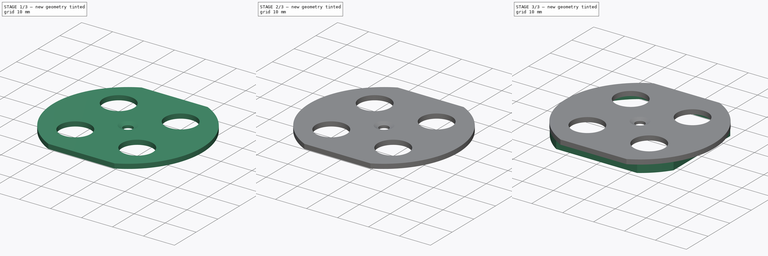
[diagram: build sequence overview — one tinted view per stage of 3, left to right]
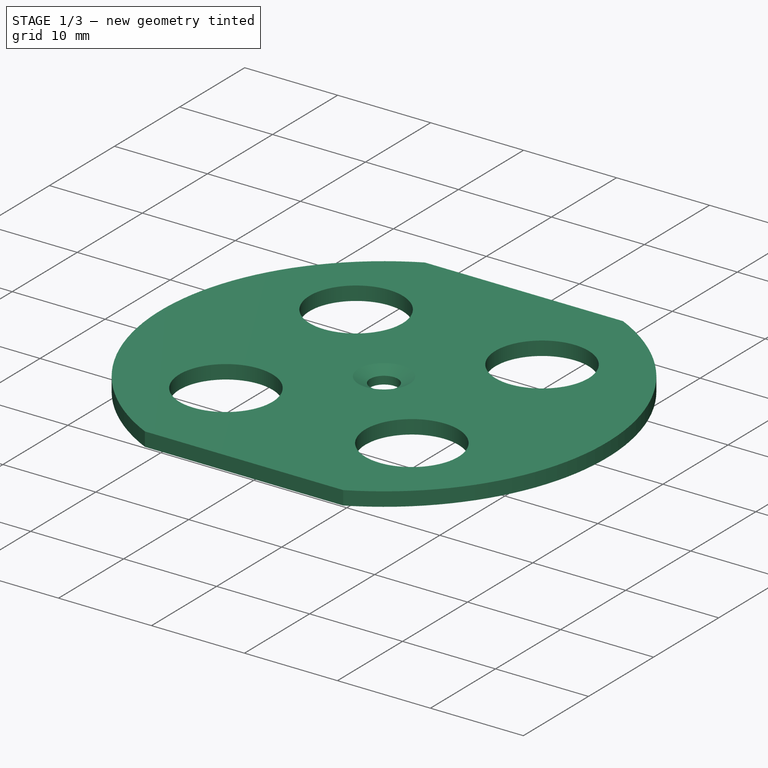
[diagram: stage 1 of 3 — iso view after this stage's code; geometry added in this stage tinted green]
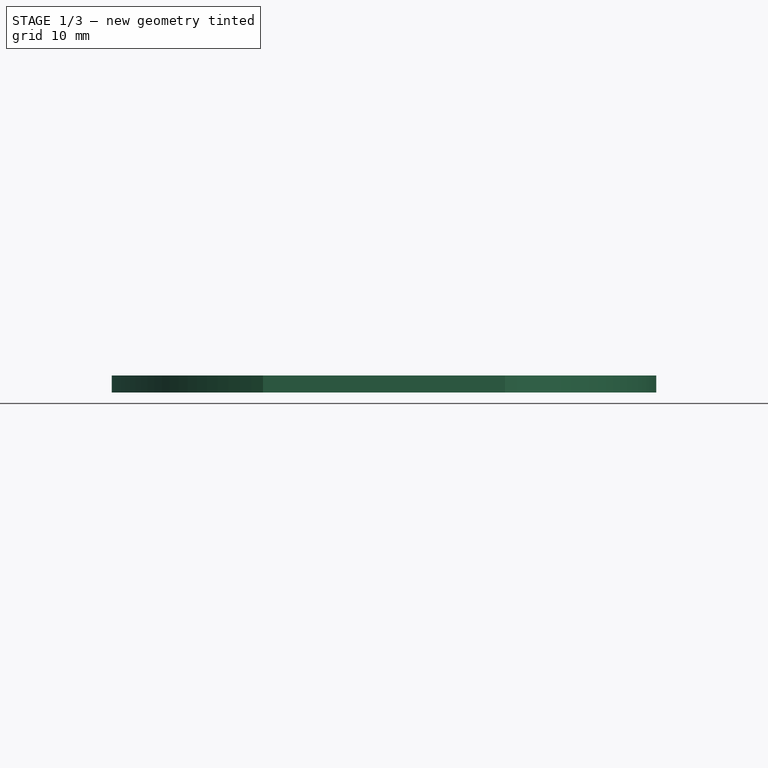
[diagram: stage 1 of 3 — front view after this stage's code; geometry added in this stage tinted green]
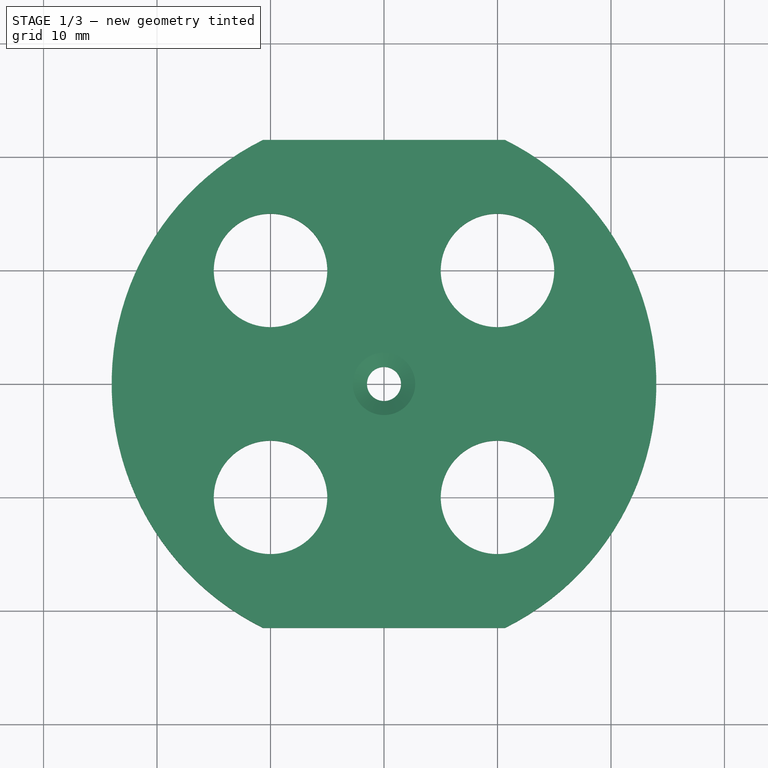
[diagram: stage 1 of 3 — top view after this stage's code; geometry added in this stage tinted green]
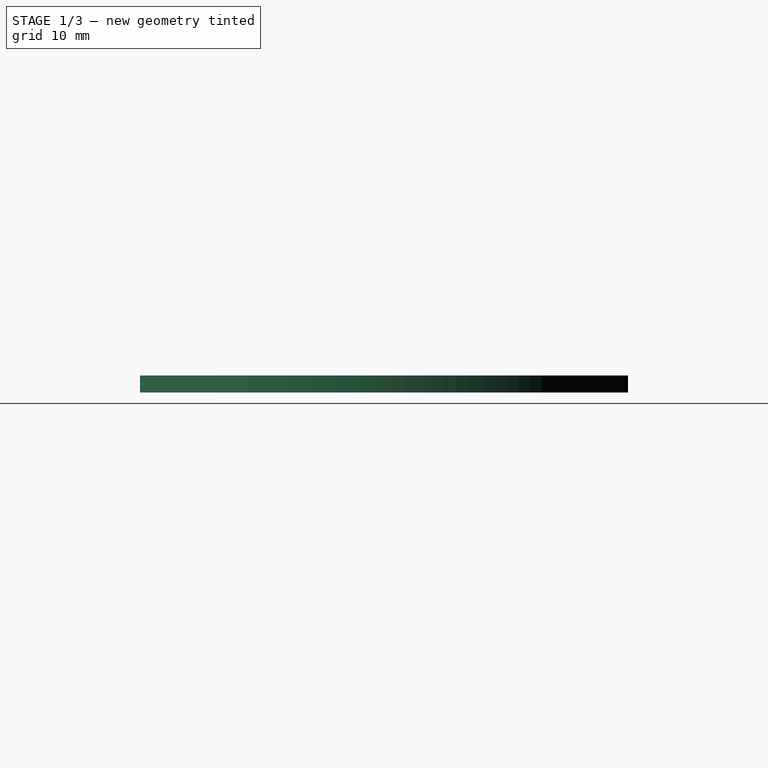
[diagram: stage 1 of 3 — right view after this stage's code; geometry added in this stage tinted green]
FCSTD DOCUMENT  (FreeCAD 0.21R33694 (Git))
Label: light_reflector_basin
License: All rights reserved
LicenseURL: http://en.wikipedia.org/wiki/All_rights_reserved
objects: Sketcher::SketchObject×4, PartDesign::Pad×2, PartDesign::Pocket×2, PartDesign::Chamfer×1, PartDesign::Body×1
note: 15 computed .brp shape members not serialized (recipe doc carries the construction recipe); baked Part::Feature solids carry a one-line shape summary decoded from their .brp

FEATURE [Sketcher::SketchObject] Sketch
  FullyConstrained = true
  MapMode = 5
  Support = -> [XY_Plane]
  sketch-geometry (9):
    g0: ArcOfCircle CenterX=0 CenterY=0 CenterZ=0 NormalX=0 NormalY=0 NormalZ=1 AngleXU=0 Radius=24 StartAngle=5.17288 EndAngle=7.39349
    g1: Circle CenterX=10 CenterY=-10 CenterZ=0 NormalX=0 NormalY=0 NormalZ=1 AngleXU=0 Radius=5
    g2: Circle CenterX=-10 CenterY=-10 CenterZ=0 NormalX=0 NormalY=0 NormalZ=1 AngleXU=0 Radius=5
    g3: Circle CenterX=-10 CenterY=10 CenterZ=0 NormalX=0 NormalY=0 NormalZ=1 AngleXU=0 Radius=5
    g4: Circle CenterX=10 CenterY=10 CenterZ=0 NormalX=0 NormalY=0 NormalZ=1 AngleXU=0 Radius=5
    g5: Circle CenterX=0 CenterY=0 CenterZ=0 NormalX=0 NormalY=0 NormalZ=1 AngleXU=0 Radius=1.5
    g6: LineSegment StartX=-10.6654 StartY=21.5 StartZ=0 EndX=10.6654 EndY=21.5 EndZ=0
    g7: LineSegment StartX=-10.6654 StartY=-21.5 StartZ=0 EndX=10.6654 EndY=-21.5 EndZ=0
    g8: ArcOfCircle CenterX=0 CenterY=0 CenterZ=0 NormalX=0 NormalY=0 NormalZ=1 AngleXU=0 Radius=24 StartAngle=2.03129 EndAngle=4.2519
  constraints (26):
    c: Coincident(g0,g-1)
    c: Radius(g0) = 24
    c: DistanceY(g0,g4) = 10
    c: DistanceX(g0,g4) = 10
    c: Radius(g3) = 5
    c: DistanceY(g0,g3) = 10
    c: DistanceX(g3,g0) = 10
    c: DistanceX(g2,g0) = 10
    c: DistanceX(g0,g1) = 10
    c: DistanceY(g1,g0) = 10
    c: DistanceY(g2,g0) = 10
    c: Coincident(g5,g0)
    c: Radius(g5) = 1.5
    c: Horizontal(g6)
    c: Horizontal(g7)
    c: DistanceY(g7,g6) = 43
    c: DistanceY(g0,g6) = 21.5
    c: Equal(g4,g3)
    c: Coincident(g8,g7)
    c: Coincident(g0,g7)
    c: Equal(g0,g8)
    c: Coincident(g0,g6)
    c: Coincident(g8,g6)
    c: Coincident(g0,g8)
    c: Equal(g3,g2)
    c: Equal(g3,g1)
FEATURE [PartDesign::Pad] Pad
  Direction = (0,0,1)
  Length = 1.5
  Length2 = 10
  Profile = -> Sketch
  ReferenceAxis = -> Sketch [N_Axis]
  Type = 0
FEATURE [PartDesign::Chamfer] Chamfer
  Angle = 45
  Base = -> Pad [Edge27]
  BaseFeature = -> Pad
  ChamferType = 1
  FlipDirection = false
  Size = 0.65
  Size2 = 1.25
  SupportTransform = false
  UseAllEdges = false
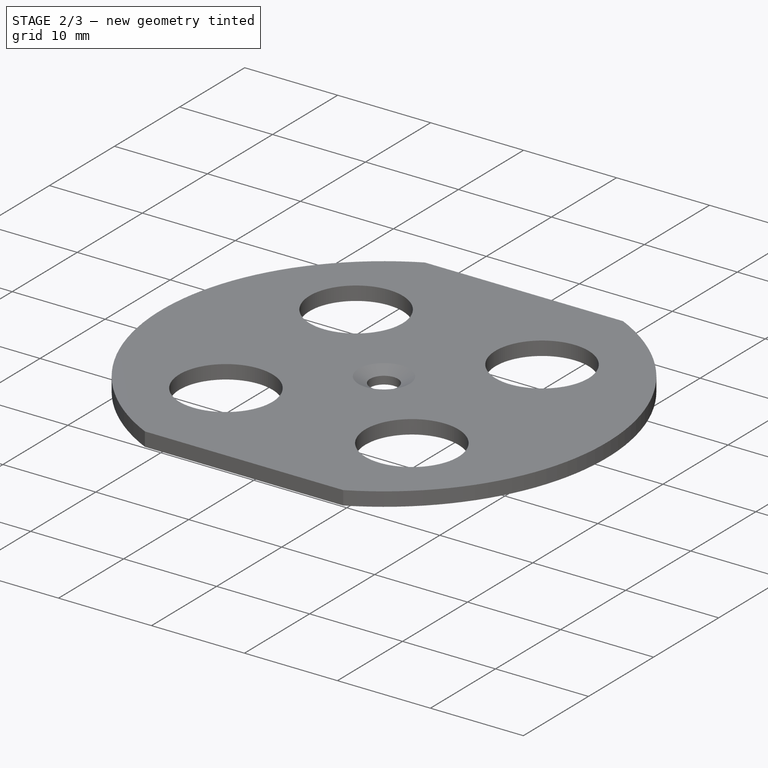
[diagram: stage 2 of 3 — iso view after this stage's code; geometry added in this stage tinted green]
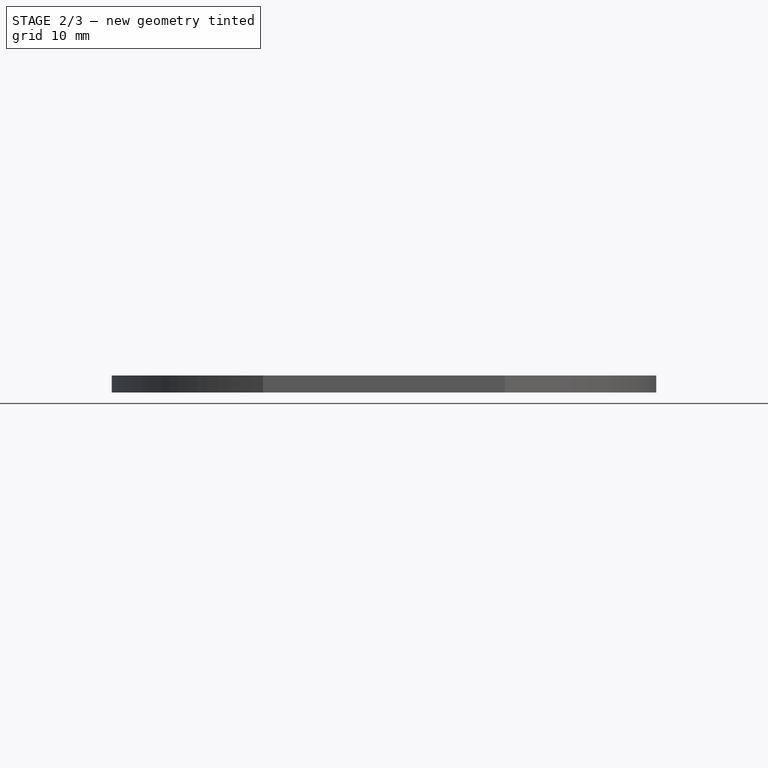
[diagram: stage 2 of 3 — front view after this stage's code; geometry added in this stage tinted green]
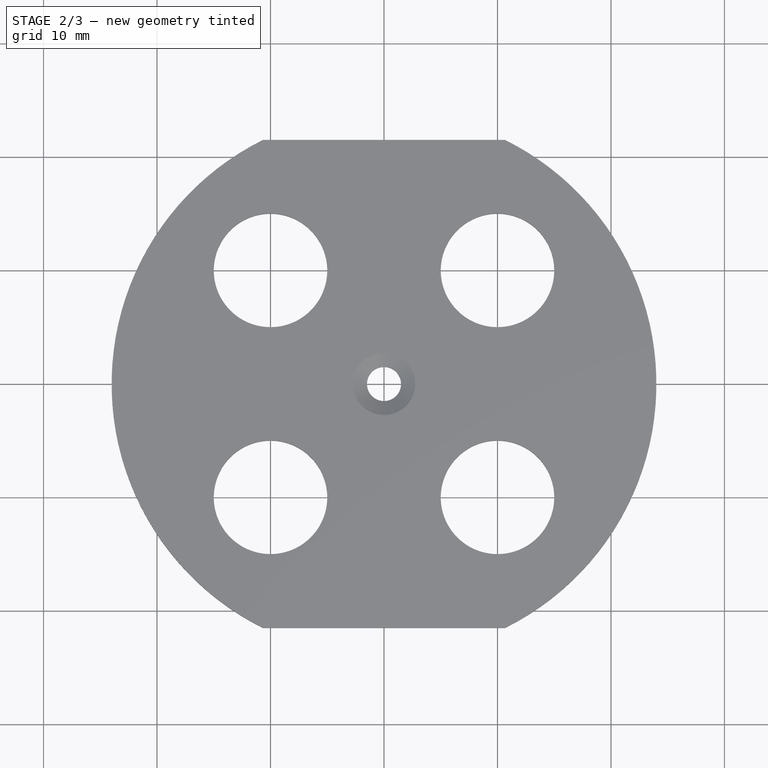
[diagram: stage 2 of 3 — top view after this stage's code; geometry added in this stage tinted green]
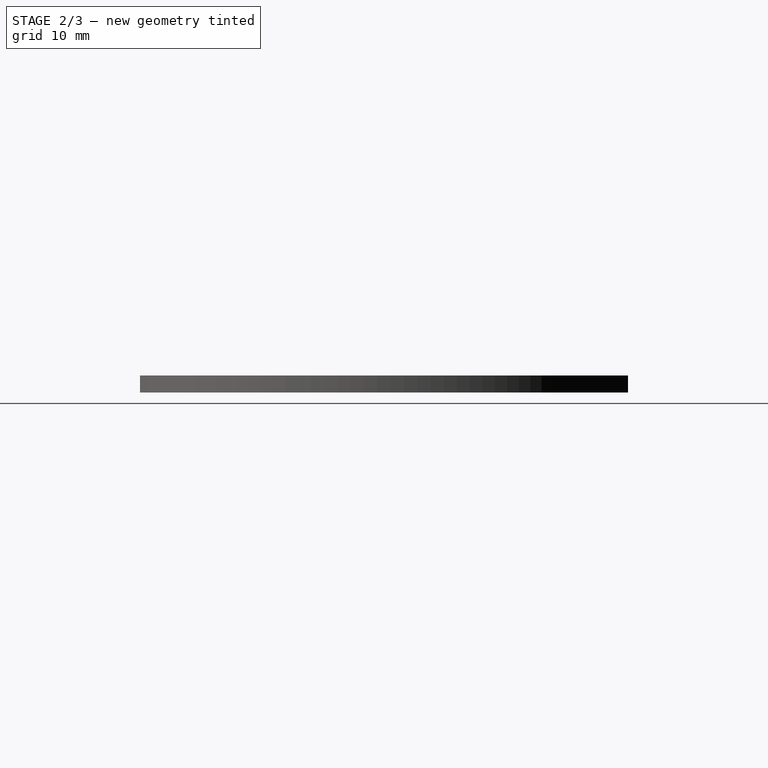
[diagram: stage 2 of 3 — right view after this stage's code; geometry added in this stage tinted green]
FEATURE [Sketcher::SketchObject] Sketch001
  FullyConstrained = true
  MapMode = 5
  Placement = pos=(0,0,0) rot=(1,0,0;3.14159rad)
  Support = -> [Chamfer]
  sketch-geometry (16):
    g0: ArcOfCircle CenterX=0 CenterY=14.5 CenterZ=0 NormalX=0 NormalY=0 NormalZ=1 AngleXU=0 Radius=4 StartAngle=0 EndAngle=3.14159
    g1: ArcOfCircle CenterX=0 CenterY=12 CenterZ=0 NormalX=0 NormalY=0 NormalZ=1 AngleXU=0 Radius=4 StartAngle=3.14159 EndAngle=6.28319
    g2: LineSegment StartX=-4 StartY=14.5 StartZ=0 EndX=-4 EndY=12 EndZ=0
    g3: LineSegment StartX=4 StartY=12 StartZ=0 EndX=4 EndY=14.5 EndZ=0
    g4: ArcOfCircle CenterX=0 CenterY=-14.5 CenterZ=0 NormalX=0 NormalY=0 NormalZ=1 AngleXU=0 Radius=4 StartAngle=3.14159 EndAngle=6.28319
    g5: ArcOfCircle CenterX=0 CenterY=-12 CenterZ=0 NormalX=0 NormalY=0 NormalZ=1 AngleXU=0 Radius=4 StartAngle=0 EndAngle=3.14159
    g6: LineSegment StartX=-4 StartY=-14.5 StartZ=0 EndX=-4 EndY=-12 EndZ=0
    g7: LineSegment StartX=4 StartY=-12 StartZ=0 EndX=4 EndY=-14.5 EndZ=0
    g8: ArcOfCircle CenterX=9 CenterY=0 CenterZ=0 NormalX=0 NormalY=0 NormalZ=1 AngleXU=0 Radius=4 StartAngle=1.5708 EndAngle=4.71239
    g9: ArcOfCircle CenterX=11 CenterY=0 CenterZ=0 NormalX=0 NormalY=0 NormalZ=1 AngleXU=0 Radius=4 StartAngle=4.71239 EndAngle=7.85398
    g10: LineSegment StartX=9 StartY=-4 StartZ=0 EndX=11 EndY=-4 EndZ=0
    g11: LineSegment StartX=11 StartY=4 StartZ=0 EndX=9 EndY=4 EndZ=0
    g12: ArcOfCircle CenterX=-9 CenterY=0 CenterZ=0 NormalX=0 NormalY=0 NormalZ=1 AngleXU=0 Radius=4 StartAngle=4.71239 EndAngle=7.85398
    g13: ArcOfCircle CenterX=-11 CenterY=0 CenterZ=0 NormalX=0 NormalY=0 NormalZ=1 AngleXU=0 Radius=4 StartAngle=1.5708 EndAngle=4.71239
    g14: LineSegment StartX=-9 StartY=-4 StartZ=0 EndX=-11 EndY=-4 EndZ=0
    g15: LineSegment StartX=-11 StartY=4 StartZ=0 EndX=-9 EndY=4 EndZ=0
  constraints (40):
    c: Tangent(g0,g2) = -1.5708
    c: Tangent(g2,g1) = -1.5708
    c: Tangent(g1,g3) = -1.5708
    c: Tangent(g3,g0) = -1.5708
    c: Equal(g0,g1)
    c: PointOnObject(g0,g-2)
    c: PointOnObject(g1,g-2)
    c: DistanceY(g-1,g1) = 12
    c: DistanceY(g1,g0) = 2.5
    c: DistanceX(g1,g1) = 8
    c: Tangent(g4,g6) = 1.5708
    c: Tangent(g6,g5) = 1.5708
    c: Tangent(g5,g7) = 1.5708
    c: Tangent(g7,g4) = 1.5708
    c: Equal(g4,g5)
    c: DistanceX(g5,g5) = 8
    c: DistanceY(g4,g5) = 2.5
    c: DistanceY(g5,g-1) = 12
    c: PointOnObject(g4,g-2)
    c: PointOnObject(g5,g-2)
    c: Tangent(g8,g10) = -1.5708
    c: Tangent(g10,g9) = -1.5708
    c: Tangent(g9,g11) = -1.5708
    c: Tangent(g11,g8) = -1.5708
    c: Equal(g8,g9)
    c: PointOnObject(g8,g-1)
    c: PointOnObject(g9,g-1)
    c: DistanceX(g-1,g8) = 9
    c: DistanceX(g8,g9) = 2
    c: DistanceY(g9,g9) = 8
    c: Tangent(g12,g14) = 1.5708
    c: Tangent(g14,g13) = 1.5708
    c: Tangent(g13,g15) = 1.5708
    c: Tangent(g15,g12) = 1.5708
    c: Equal(g12,g13)
    c: DistanceX(g12,g-1) = 9
    c: DistanceX(g13,g12) = 2
    c: DistanceY(g12,g12) = 8
    c: PointOnObject(g12,g-1)
    c: PointOnObject(g13,g-1)
FEATURE [PartDesign::Pocket] Pocket
  BaseFeature = -> Chamfer
  Direction = (0,0,1)
  Length = 1
  Length2 = 5
  Profile = -> Sketch001
  ReferenceAxis = -> Sketch001 [N_Axis]
  Type = 0
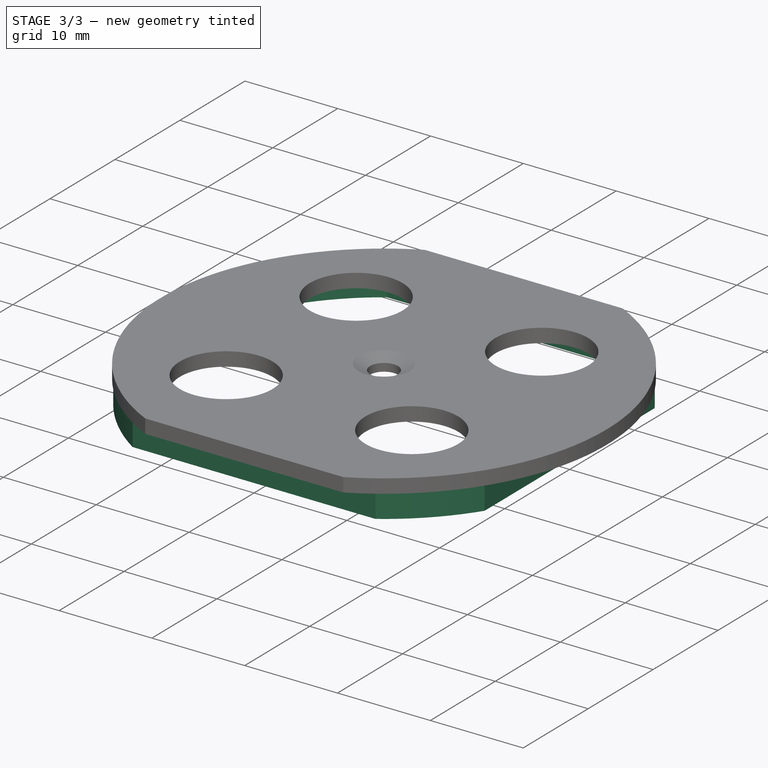
[diagram: stage 3 of 3 — iso view after this stage's code; geometry added in this stage tinted green]
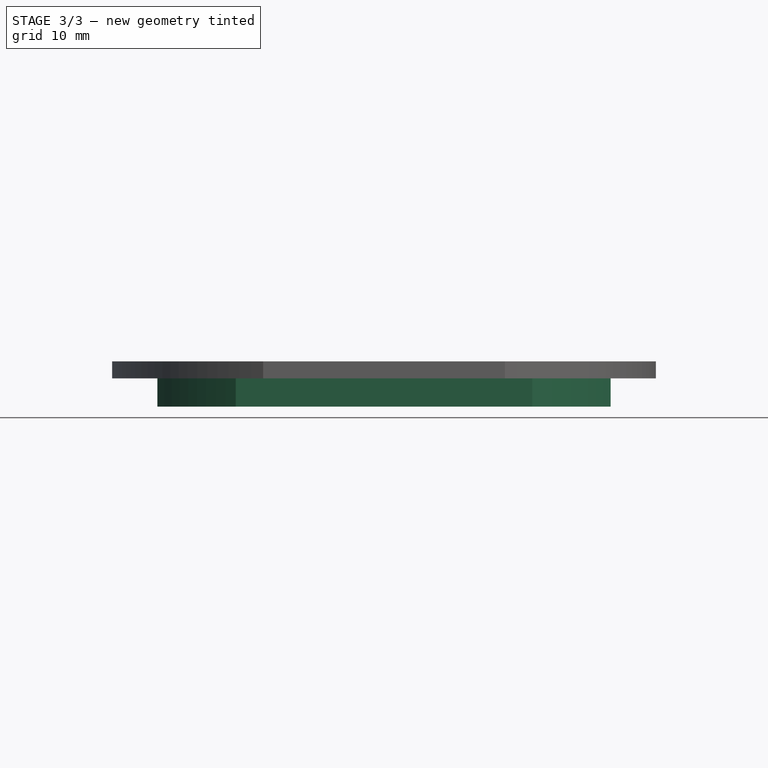
[diagram: stage 3 of 3 — front view after this stage's code; geometry added in this stage tinted green]
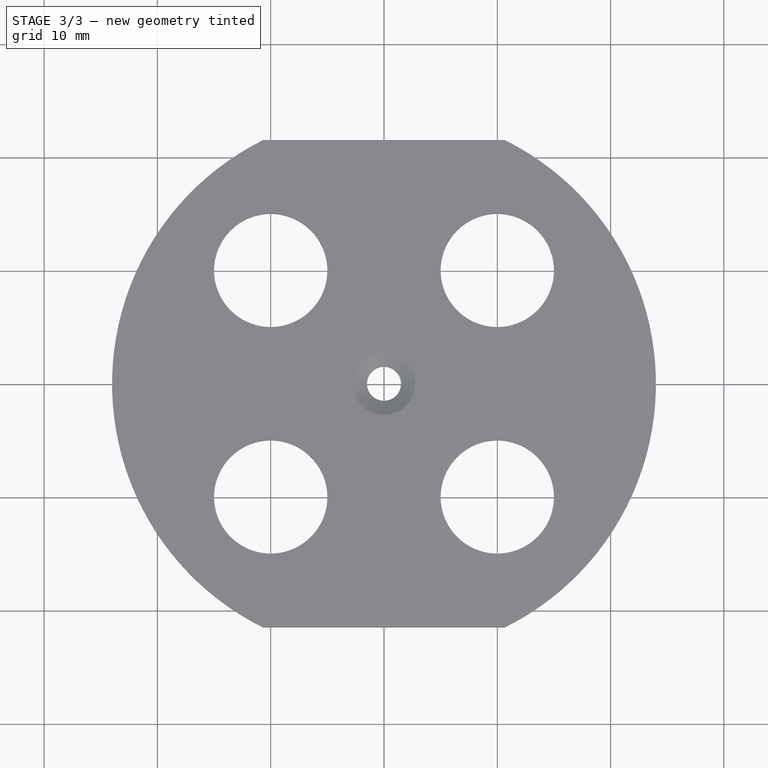
[diagram: stage 3 of 3 — top view after this stage's code; geometry added in this stage tinted green]
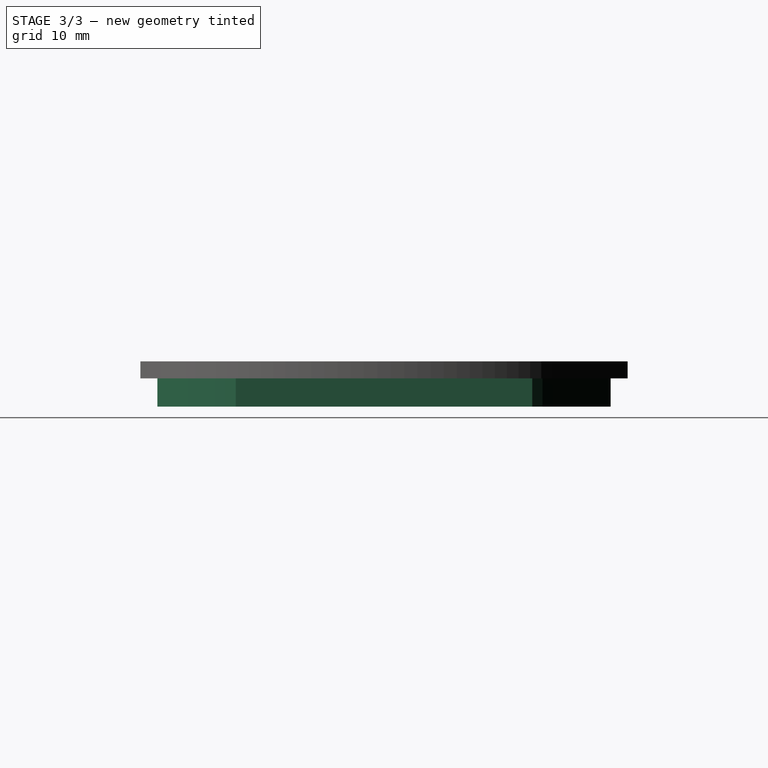
[diagram: stage 3 of 3 — right view after this stage's code; geometry added in this stage tinted green]
FEATURE [Sketcher::SketchObject] Sketch002
  FullyConstrained = true
  MapMode = 5
  Placement = pos=(0,0,0) rot=(1,0,0;3.14159rad)
  Support = -> [Pocket]
  sketch-geometry (8):
    g0: LineSegment StartX=-20 StartY=13.0847 StartZ=0 EndX=-20 EndY=-13.0847 EndZ=0
    g1: LineSegment StartX=-13.0847 StartY=-20 StartZ=0 EndX=13.0847 EndY=-20 EndZ=0
    g2: LineSegment StartX=20 StartY=-13.0847 StartZ=0 EndX=20 EndY=13.0847 EndZ=0
    g3: LineSegment StartX=13.0847 StartY=20 StartZ=0 EndX=-13.0847 EndY=20 EndZ=0
    g4: ArcOfCircle CenterX=0 CenterY=0 CenterZ=0 NormalX=0 NormalY=0 NormalZ=1 AngleXU=0 Radius=23.9 StartAngle=0.579347 EndAngle=0.991449
    g5: ArcOfCircle CenterX=0 CenterY=0 CenterZ=0 NormalX=0 NormalY=0 NormalZ=1 AngleXU=0 Radius=23.9 StartAngle=2.15014 EndAngle=2.56225
    g6: ArcOfCircle CenterX=0 CenterY=0 CenterZ=0 NormalX=0 NormalY=0 NormalZ=1 AngleXU=0 Radius=23.9 StartAngle=5.29174 EndAngle=5.70384
    g7: ArcOfCircle CenterX=0 CenterY=0 CenterZ=0 NormalX=0 NormalY=0 NormalZ=1 AngleXU=0 Radius=23.9 StartAngle=3.72094 EndAngle=4.13304
  constraints (24):
    c: Horizontal(g1)
    c: Horizontal(g3)
    c: Vertical(g0)
    c: Vertical(g2)
    c: Radius(g4) = 23.9
    c: Coincident(g3,g4)
    c: Coincident(g2,g4)
    c: Radius(g5) = 23.9
    c: Radius(g6) = 23.9
    c: Radius(g7) = 23.9
    c: Coincident(g5,g0)
    c: Coincident(g5,g3)
    c: Coincident(g2,g6)
    c: Coincident(g1,g6)
    c: Coincident(g1,g7)
    c: Coincident(g0,g7)
    c: DistanceY(g-1,g3) = 20
    c: DistanceY(g1,g-1) = 20
    c: DistanceX(g0,g-1) = 20
    c: DistanceX(g-1,g2) = 20
    c: Coincident(g4,g5)
    c: Coincident(g4,g6)
    c: Coincident(g4,g7)
    c: Coincident(g4,g-1)
FEATURE [PartDesign::Pad] Pad001
  BaseFeature = -> Pocket
  Direction = (0,0,-1)
  Length = 2.5
  Length2 = 10
  Profile = -> Sketch002
  ReferenceAxis = -> Sketch002 [N_Axis]
  Type = 0
FEATURE [Sketcher::SketchObject] Sketch003
  FullyConstrained = true
  MapMode = 5
  Placement = pos=(0,0,-2.5) rot=(1,0,0;3.14159rad)
  Support = -> [Pad001]
  sketch-geometry (9):
    g0: LineSegment StartX=-18.5 StartY=12.6297 StartZ=0 EndX=-18.5 EndY=-12.6297 EndZ=0
    g1: LineSegment StartX=-12.6297 StartY=-18.5 StartZ=0 EndX=12.6297 EndY=-18.5 EndZ=0
    g2: LineSegment StartX=18.5 StartY=-12.6297 StartZ=0 EndX=18.5 EndY=12.6297 EndZ=0
    g3: LineSegment StartX=12.6297 StartY=18.5 StartZ=0 EndX=-12.6297 EndY=18.5 EndZ=0
    g4: GeomPoint X=0 Y=0 Z=0
    g5: ArcOfCircle CenterX=0 CenterY=0 CenterZ=0 NormalX=0 NormalY=0 NormalZ=1 AngleXU=0 Radius=22.4 StartAngle=0.599012 EndAngle=0.971784
    g6: ArcOfCircle CenterX=0 CenterY=0 CenterZ=0 NormalX=0 NormalY=0 NormalZ=1 AngleXU=0 Radius=22.4 StartAngle=2.16981 EndAngle=2.54258
    g7: ArcOfCircle CenterX=0 CenterY=0 CenterZ=0 NormalX=0 NormalY=0 NormalZ=1 AngleXU=0 Radius=22.4 StartAngle=5.3114 EndAngle=5.68417
    g8: ArcOfCircle CenterX=0 CenterY=0 CenterZ=0 NormalX=0 NormalY=0 NormalZ=1 AngleXU=0 Radius=22.4 StartAngle=3.74061 EndAngle=4.11338
  constraints (25):
    c: Horizontal(g1)
    c: Horizontal(g3)
    c: Vertical(g0)
    c: Vertical(g2)
    c: Coincident(g4,g-1)
    c: Coincident(g3,g6)
    c: Coincident(g0,g6)
    c: Coincident(g3,g5)
    c: Coincident(g2,g5)
    c: Coincident(g2,g7)
    c: Coincident(g1,g7)
    c: Coincident(g1,g8)
    c: Coincident(g0,g8)
    c: Coincident(g4,g5)
    c: Coincident(g4,g6)
    c: Coincident(g4,g7)
    c: Coincident(g4,g8)
    c: DistanceX(g5,g2) = 18.5
    c: DistanceX(g0,g2) = 37
    c: DistanceY(g5,g3) = 18.5
    c: DistanceY(g1,g3) = 37
    c: Radius(g5) = 22.4
    c: Radius(g7) = 22.4
    c: Radius(g8) = 22.4
    c: Radius(g6) = 22.4
FEATURE [PartDesign::Pocket] Pocket001
  BaseFeature = -> Pad001
  Direction = (0,0,1)
  Length = 2.5
  Length2 = 5
  Profile = -> Sketch003
  ReferenceAxis = -> Sketch003 [N_Axis]
  Type = 0
FEATURE [PartDesign::Body] Body
  Group = -> [Sketch,Pad,Chamfer,Sketch001,Pocket,Sketch002,Pad001,Sketch003,Pocket001]
  Origin = -> Origin
  Tip = -> Pocket001
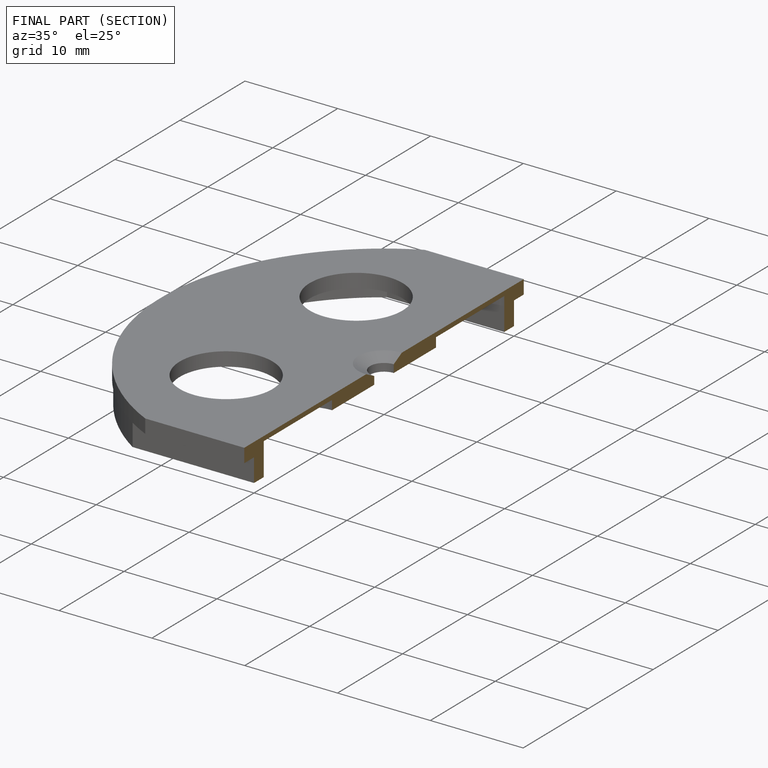
[diagram: finished part — half-section view (interior)]
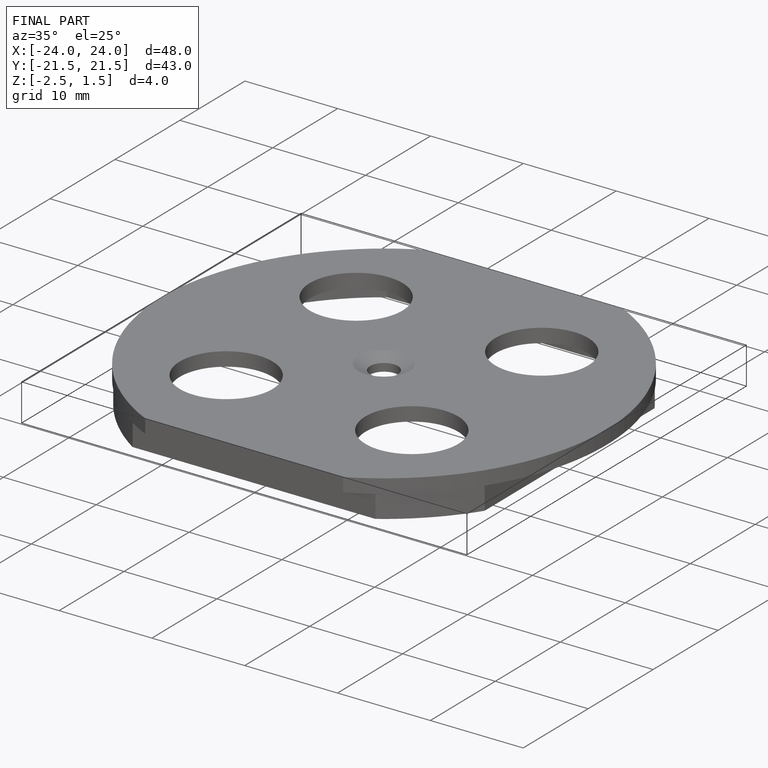
[diagram: finished part — iso view with bounding-box wireframe]
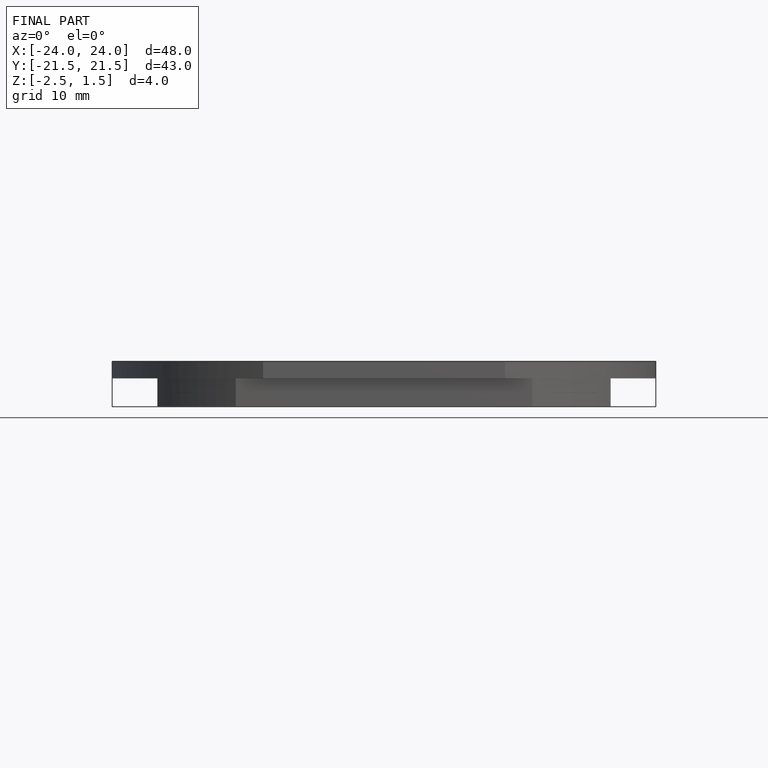
[diagram: finished part — front view with bounding-box wireframe]
